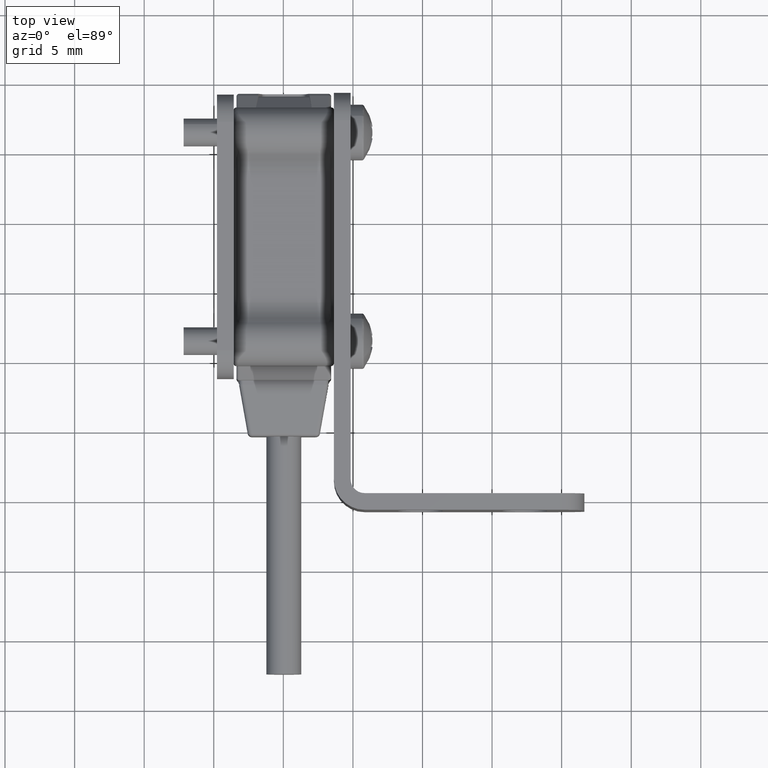
[diagram: clean part render]
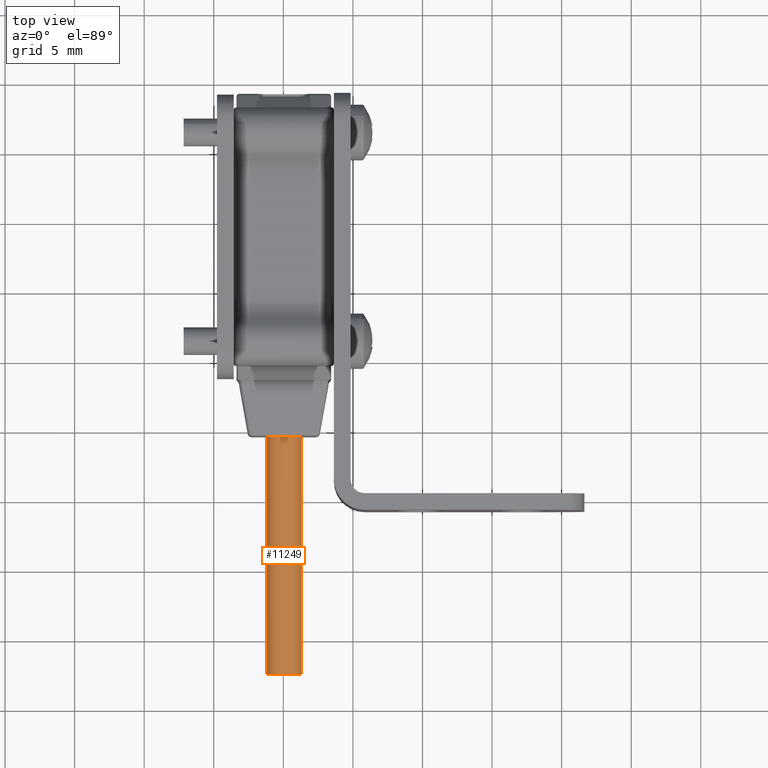
[diagram: same view with one face highlighted and labeled with its STEP entity id]
A machine part, top view. The second image highlights one B-rep face of the part: STEP entity #11249.
In plain terms, the highlighted cylindrical surface (edge-blend (fillet) strip) has radius 1.25 mm, axis along (-0, 1, -0).
Its self-contained STEP definition (entity closure, byte-faithful):
#605 = EDGE_CURVE ( 'NONE', #3243, #16501, #3851, .T. ) ;
#781 = CARTESIAN_POINT ( 'NONE',  ( 5.551115123125782702E-14, -77.43374997246289126, -2.000907277606975398 ) ) ;
#797 = EDGE_CURVE ( 'NONE', #7215, #16501, #10409, .T. ) ;
#1113 = CARTESIAN_POINT ( 'NONE',  ( -1.249948901012952529, -27.43374997246288416, -1.989604850589028695 ) ) ;
#1314 = CARTESIAN_POINT ( 'NONE',  ( 1.249948901013000935, -77.43374997246289126, -2.012209704624928541 ) ) ;
#2799 = ORIENTED_EDGE ( 'NONE', *, *, #605, .F. ) ;
#3240 = ORIENTED_EDGE ( 'NONE', *, *, #11525, .T. ) ;
#3243 = VERTEX_POINT ( 'NONE', #8127 ) ;
#3851 = CIRCLE ( 'NONE', #10155, 1.250000000000000222 ) ;
#3991 = DIRECTION ( 'NONE',  ( 0.000000000000000000, 0.000000000000000000, -1.000000000000000000 ) ) ;
#4977 = VECTOR ( 'NONE', #13693, 1000.000000000000000 ) ;
#5277 = ORIENTED_EDGE ( 'NONE', *, *, #17585, .F. ) ;
#5289 = EDGE_LOOP ( 'NONE', ( #5277, #3240, #10831, #2799 ) ) ;
#5515 = CARTESIAN_POINT ( 'NONE',  ( 1.249948901013000935, -27.43374997246288416, -2.012209704624928541 ) ) ;
#7215 = VERTEX_POINT ( 'NONE', #5515 ) ;
#7909 = FACE_OUTER_BOUND ( 'NONE', #5289, .T. ) ;
#8127 = CARTESIAN_POINT ( 'NONE',  ( -1.249948901012952529, -10.35532692555186962, -1.989604850589028695 ) ) ;
#9157 = CARTESIAN_POINT ( 'NONE',  ( -1.249948901012903901, -77.43374997246289126, -1.989604850588980067 ) ) ;
#9644 = AXIS2_PLACEMENT_3D ( 'NONE', #16699, #10756, #12244 ) ;
#10155 = AXIS2_PLACEMENT_3D ( 'NONE', #12768, #17333, #3991 ) ;
#10409 = LINE ( 'NONE', #1314, #11734 ) ;
#10649 = LINE ( 'NONE', #9157, #4977 ) ;
#10756 = DIRECTION ( 'NONE',  ( -1.155072701323967946E-18, 1.000000000000000000, -1.277408694004215823E-16 ) ) ;
#10831 = ORIENTED_EDGE ( 'NONE', *, *, #797, .T. ) ;
#11249 = ADVANCED_FACE ( 'NONE', ( #7909 ), #17188, .T. ) ;
#11525 = EDGE_CURVE ( 'NONE', #19521, #7215, #18186, .T. ) ;
#11734 = VECTOR ( 'NONE', #15156, 1000.000000000000000 ) ;
#11852 = AXIS2_PLACEMENT_3D ( 'NONE', #781, #12444, #14021 ) ;
#12244 = DIRECTION ( 'NONE',  ( -0.9999591208103669748, 0.000000000000000000, 0.009041941614373882885 ) ) ;
#12444 = DIRECTION ( 'NONE',  ( -1.155072701323967946E-18, 1.000000000000000000, -1.277408694004215823E-16 ) ) ;
#12768 = CARTESIAN_POINT ( 'NONE',  ( 5.551115123125782702E-14, -10.35532692555186962, -2.000907277606975398 ) ) ;
#13693 = DIRECTION ( 'NONE',  ( -5.551266550591089735E-16, 1.000000000000000000, -1.227316859253589787E-16 ) ) ;
#14021 = DIRECTION ( 'NONE',  ( 0.9999591208103669748, 0.000000000000000000, -0.009041941614373882885 ) ) ;
#15156 = DIRECTION ( 'NONE',  ( -5.551266550591089735E-16, 1.000000000000000000, -1.227316859253589787E-16 ) ) ;
#16501 = VERTEX_POINT ( 'NONE', #18817 ) ;
#16699 = CARTESIAN_POINT ( 'NONE',  ( 5.551115123125782702E-14, -27.43374997246288416, -2.000907277606975398 ) ) ;
#17188 = CYLINDRICAL_SURFACE ( 'NONE', #11852, 1.250000000000000000 ) ;
#17333 = DIRECTION ( 'NONE',  ( 0.000000000000000000, 1.000000000000000000, 0.000000000000000000 ) ) ;
#17585 = EDGE_CURVE ( 'NONE', #19521, #3243, #10649, .T. ) ;
#18186 = CIRCLE ( 'NONE', #9644, 1.250000000000000000 ) ;
#18817 = CARTESIAN_POINT ( 'NONE',  ( 1.249948901013000935, -10.35532692555186962, -2.012209704624928541 ) ) ;
#19521 = VERTEX_POINT ( 'NONE', #1113 ) ;